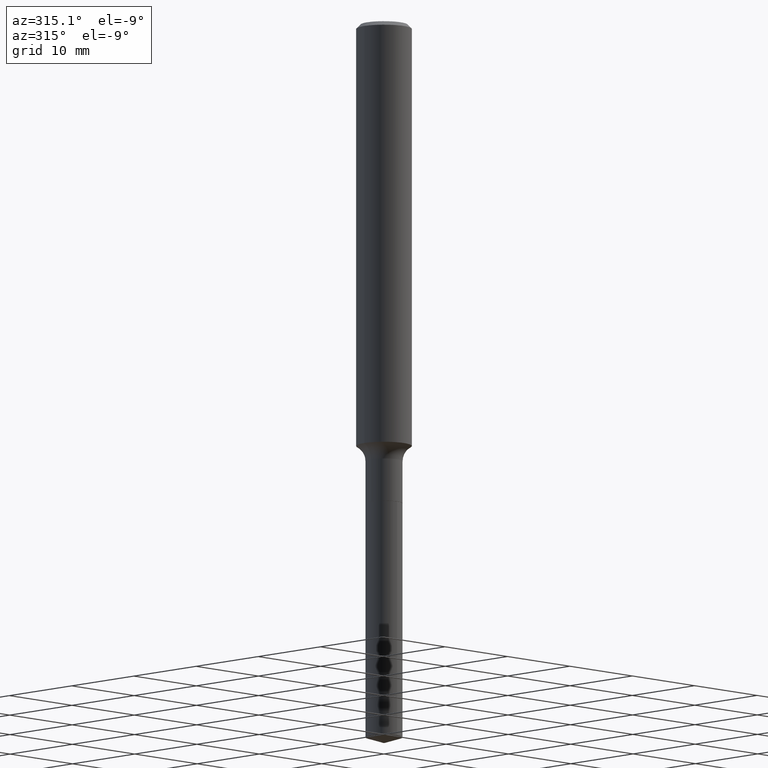
[diagram: clean part render]
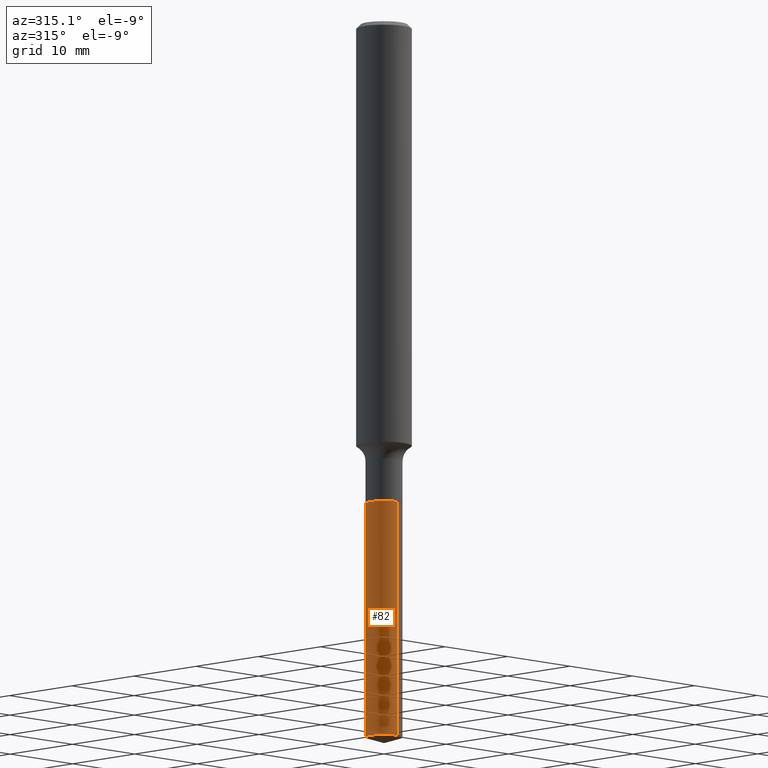
[diagram: same view with one face highlighted and labeled with its STEP entity id]
A machine part, auxiliary view. The second image highlights one B-rep face of the part: STEP entity #82.
In plain terms, the highlighted cylindrical surface (edge-blend (fillet) strip) has radius 2.1082 mm, axis along (-0, 0, 1).
Its self-contained STEP definition (entity closure, byte-faithful):
#16 = ORIENTED_EDGE ( 'NONE', *, *, #77, .F. ) ;
#18 = VECTOR ( 'NONE', #132, 39.37007874015748143 ) ;
#19 = VECTOR ( 'NONE', #126, 39.37007874015748143 ) ;
#35 = EDGE_LOOP ( 'NONE', ( #16, #220, #249, #444 ) ) ;
#45 = AXIS2_PLACEMENT_3D ( 'NONE', #352, #390, #313 ) ;
#48 = CARTESIAN_POINT ( 'NONE',  ( 5.897504706809620711E-16, 0.08299999999999244094, -2.165999999999999925 ) ) ;
#65 = VERTEX_POINT ( 'NONE', #169 ) ;
#69 = DIRECTION ( 'NONE',  ( -2.445486196868284062E-29, 3.491456434395062399E-15, 1.000000000000000000 ) ) ;
#77 = EDGE_CURVE ( 'NONE', #195, #457, #321, .T. ) ;
#82 = ADVANCED_FACE ( 'NONE', ( #87 ), #240, .T. ) ;
#84 = AXIS2_PLACEMENT_3D ( 'NONE', #400, #69, #408 ) ;
#87 = FACE_OUTER_BOUND ( 'NONE', #35, .T. ) ;
#94 = CARTESIAN_POINT ( 'NONE',  ( 5.296885434197005931E-29, -7.562548579934253227E-15, -2.165999999999999925 ) ) ;
#112 = EDGE_CURVE ( 'NONE', #457, #484, #166, .T. ) ;
#116 = CARTESIAN_POINT ( 'NONE',  ( -5.795859022479071374E-16, -0.08300000000000756772, -2.165999999999999481 ) ) ;
#126 = DIRECTION ( 'NONE',  ( -2.445486196868284062E-29, 3.491456434395062794E-15, 1.000000000000000000 ) ) ;
#132 = DIRECTION ( 'NONE',  ( -2.445486196868284062E-29, 3.491456434395062794E-15, 1.000000000000000000 ) ) ;
#138 = DIRECTION ( 'NONE',  ( -6.982962677686266711E-15, -1.000000000000000000, 3.291383124896702687E-15 ) ) ;
#157 = EDGE_CURVE ( 'NONE', #195, #65, #296, .T. ) ;
#166 = CIRCLE ( 'NONE', #200, 0.08300000000000000433 ) ;
#169 = CARTESIAN_POINT ( 'NONE',  ( -5.795859022478812036E-16, -0.08300000000001124534, -3.223830200523043477 ) ) ;
#195 = VERTEX_POINT ( 'NONE', #445 ) ;
#200 = AXIS2_PLACEMENT_3D ( 'NONE', #94, #362, #138 ) ;
#202 = CARTESIAN_POINT ( 'NONE',  ( -5.795859022479071374E-16, -0.08300000000000756772, -2.165999999999999481 ) ) ;
#220 = ORIENTED_EDGE ( 'NONE', *, *, #157, .T. ) ;
#236 = LINE ( 'NONE', #202, #19 ) ;
#240 = CYLINDRICAL_SURFACE ( 'NONE', #45, 0.08300000000000000433 ) ;
#249 = ORIENTED_EDGE ( 'NONE', *, *, #276, .T. ) ;
#276 = EDGE_CURVE ( 'NONE', #65, #484, #236, .T. ) ;
#296 = CIRCLE ( 'NONE', #84, 0.08300000000000000433 ) ;
#313 = DIRECTION ( 'NONE',  ( -6.982962677686266711E-15, -1.000000000000000000, 3.291383124896702687E-15 ) ) ;
#321 = LINE ( 'NONE', #429, #18 ) ;
#352 = CARTESIAN_POINT ( 'NONE',  ( 5.296885434197005931E-29, -7.562548579934253227E-15, -2.165999999999999925 ) ) ;
#362 = DIRECTION ( 'NONE',  ( -2.445486196868284062E-29, 3.491456434395062399E-15, 1.000000000000000000 ) ) ;
#390 = DIRECTION ( 'NONE',  ( -2.445486196868284062E-29, 3.491456434395062399E-15, 1.000000000000000000 ) ) ;
#400 = CARTESIAN_POINT ( 'NONE',  ( 7.883794588206518333E-29, -1.125591664004785458E-14, -3.223830200523043921 ) ) ;
#408 = DIRECTION ( 'NONE',  ( -6.982962677686266711E-15, -1.000000000000000000, 6.582766249793405374E-15 ) ) ;
#429 = CARTESIAN_POINT ( 'NONE',  ( 5.897504706809361373E-16, 0.08299999999999244094, -2.165999999999999925 ) ) ;
#444 = ORIENTED_EDGE ( 'NONE', *, *, #112, .F. ) ;
#445 = CARTESIAN_POINT ( 'NONE',  ( 5.897504706809619725E-16, 0.08299999999998876332, -3.223830200523044365 ) ) ;
#457 = VERTEX_POINT ( 'NONE', #48 ) ;
#484 = VERTEX_POINT ( 'NONE', #116 ) ;